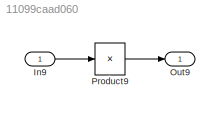
MODEL slx_11099caad060
KIND model
CONFIG AbsTol = auto
CONFIG EnableMultiTasking = on
CONFIG FixedStep = 0.1
CONFIG MaxStep = auto
CONFIG MinStep = auto
CONFIG RelTol = 1e-3
CONFIG SampleTimeConstraint = Unconstrained
CONFIG Solver = FixedStepAuto
CONFIG SolverName = FixedStepAuto
CONFIG StartTime = 0.0
CONFIG StopTime = 10.0
BLOCK [Inport] In9
  IconDisplay = Port number
  PortDimensions = [2 3]
BLOCK [Outport] Out9
  IconDisplay = Port number
BLOCK [Product] Product9
  CollapseMode = Specified dimension
  InputSameDT = off
  Inputs = 1
  OutDataTypeStr = Inherit: Inherit via internal rule
  Ports = [1, 1]
  SaturateOnIntegerOverflow = off
LINE In9:1 -> Product9:1
LINE Product9:1 -> Out9:1
